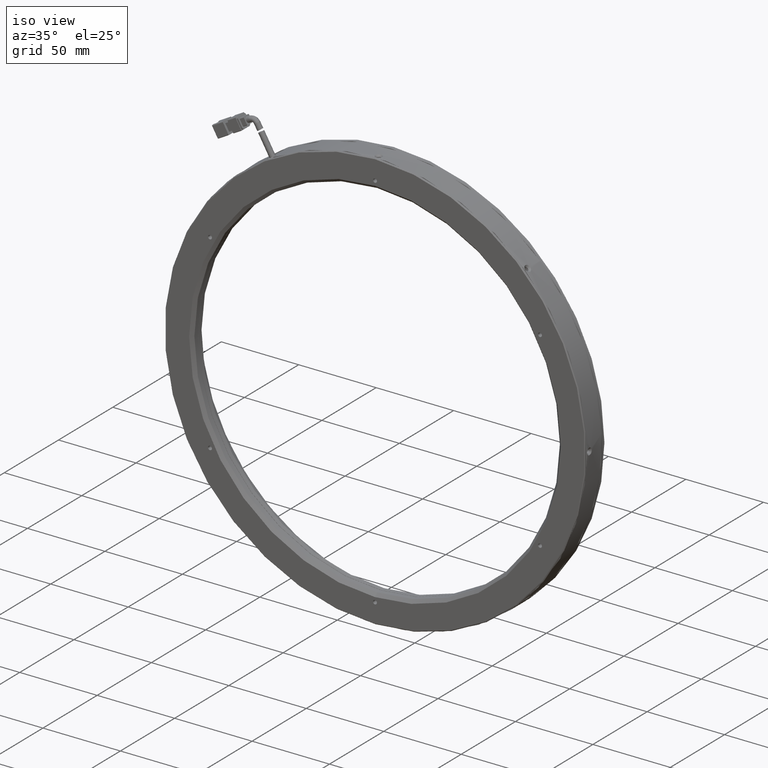
[diagram: clean part render]
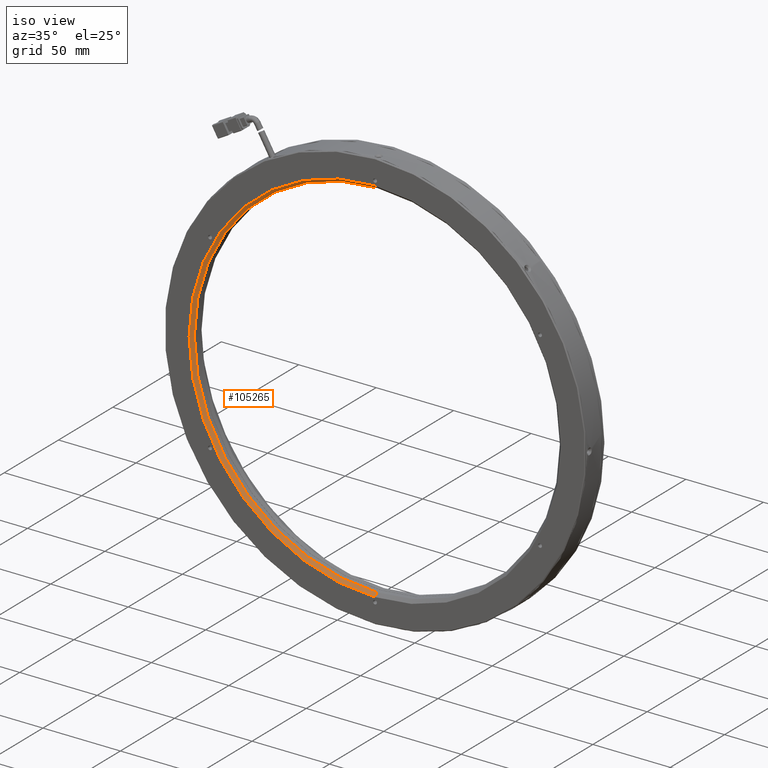
[diagram: same view with one face highlighted and labeled with its STEP entity id]
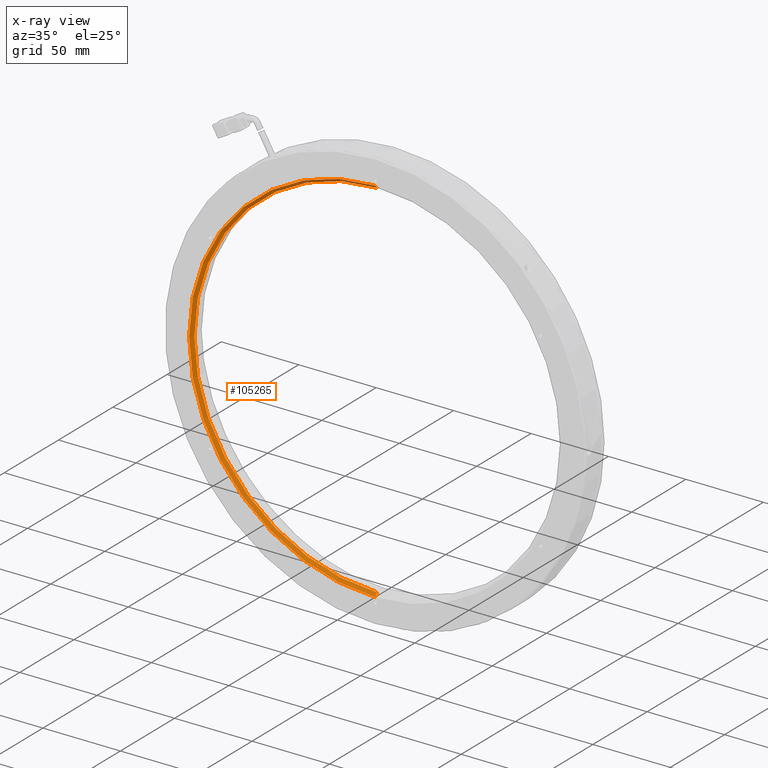
[diagram: x-ray of the same camera — body ghosted, the highlighted face saturated]
A machine part, iso view. The second image highlights one B-rep face of the part: STEP entity #105265.
The next image is the same camera in x-ray: the body ghosted, the highlighted face saturated — about 0% of this face is hidden behind the body in this view.
In plain terms, the highlighted conical surface has half-angle 45 deg.
Its self-contained STEP definition (entity closure, byte-faithful):
#1952 = DIRECTION ( 'NONE',  ( 0.0000000000000000000, 0.0000000000000000000, -1.000000000000000000 ) ) ;
#3303 = ORIENTED_EDGE ( 'NONE', *, *, #23125, .T. ) ;
#6474 = DIRECTION ( 'NONE',  ( 0.0000000000000000000, -1.000000000000000000, 0.0000000000000000000 ) ) ;
#12783 = DIRECTION ( 'NONE',  ( 0.0000000000000000000, 0.0000000000000000000, -1.000000000000000000 ) ) ;
#13100 = CIRCLE ( 'NONE', #23031, 118.0000000000000000 ) ;
#14037 = CARTESIAN_POINT ( 'NONE',  ( -23.30300868215379100, -3.366976514679598200, -120.0000000000000100 ) ) ;
#14478 = DIRECTION ( 'NONE',  ( 0.0000000000000000000, -0.7071067811865531200, -0.7071067811865420200 ) ) ;
#14698 = CARTESIAN_POINT ( 'NONE',  ( -23.30300868215379100, -3.366976514679588000, -120.0000000000000000 ) ) ;
#14939 = FACE_OUTER_BOUND ( 'NONE', #103302, .T. ) ;
#20045 = VERTEX_POINT ( 'NONE', #14698 ) ;
#23031 = AXIS2_PLACEMENT_3D ( 'NONE', #68829, #6474, #79284 ) ;
#23125 = EDGE_CURVE ( 'NONE', #119406, #24056, #113927, .T. ) ;
#24056 = VERTEX_POINT ( 'NONE', #70515 ) ;
#25539 = LINE ( 'NONE', #14037, #102097 ) ;
#29541 = CONICAL_SURFACE ( 'NONE', #70641, 120.0000000000000100, 0.7853981633974405100 ) ;
#51205 = DIRECTION ( 'NONE',  ( 8.659560562354866300E-017, -0.7071067811865531200, 0.7071067811865420200 ) ) ;
#52250 = EDGE_CURVE ( 'NONE', #24056, #20045, #89596, .T. ) ;
#58576 = VECTOR ( 'NONE', #51205, 999.9999999999998900 ) ;
#60996 = EDGE_CURVE ( 'NONE', #134481, #20045, #25539, .T. ) ;
#64343 = DIRECTION ( 'NONE',  ( 0.0000000000000000000, -1.000000000000000000, 0.0000000000000000000 ) ) ;
#68829 = CARTESIAN_POINT ( 'NONE',  ( -23.30300868215379100, -1.366976514679572300, 0.0000000000000000000 ) ) ;
#70515 = CARTESIAN_POINT ( 'NONE',  ( -23.30300868215377700, -3.366976514679588000, 120.0000000000000000 ) ) ;
#70641 = AXIS2_PLACEMENT_3D ( 'NONE', #106086, #95619, #12783 ) ;
#77595 = ORIENTED_EDGE ( 'NONE', *, *, #52250, .T. ) ;
#79284 = DIRECTION ( 'NONE',  ( 0.0000000000000000000, 2.940209281316622400E-017, -1.000000000000000000 ) ) ;
#79713 = ORIENTED_EDGE ( 'NONE', *, *, #60996, .F. ) ;
#79751 = CARTESIAN_POINT ( 'NONE',  ( -23.30300868215379100, -1.366976514679568700, -118.0000000000000000 ) ) ;
#84562 = EDGE_CURVE ( 'NONE', #119406, #134481, #13100, .T. ) ;
#87965 = ORIENTED_EDGE ( 'NONE', *, *, #84562, .F. ) ;
#89596 = CIRCLE ( 'NONE', #122164, 120.0000000000000000 ) ;
#95619 = DIRECTION ( 'NONE',  ( 0.0000000000000000000, -1.000000000000000000, 0.0000000000000000000 ) ) ;
#102097 = VECTOR ( 'NONE', #14478, 999.9999999999998900 ) ;
#103302 = EDGE_LOOP ( 'NONE', ( #87965, #3303, #77595, #79713 ) ) ;
#105265 = ADVANCED_FACE ( 'NONE', ( #14939 ), #29541, .F. ) ;
#106086 = CARTESIAN_POINT ( 'NONE',  ( -23.30300868215379100, -3.366976514679598200, 0.0000000000000000000 ) ) ;
#113557 = CARTESIAN_POINT ( 'NONE',  ( -23.30300868215377700, -3.366976514679598200, 120.0000000000000100 ) ) ;
#113927 = LINE ( 'NONE', #113557, #58576 ) ;
#119406 = VERTEX_POINT ( 'NONE', #125402 ) ;
#122164 = AXIS2_PLACEMENT_3D ( 'NONE', #126825, #64343, #1952 ) ;
#125402 = CARTESIAN_POINT ( 'NONE',  ( -23.30300868215377700, -1.366976514679572300, 118.0000000000000300 ) ) ;
#126825 = CARTESIAN_POINT ( 'NONE',  ( -23.30300868215379100, -3.366976514679588000, 0.0000000000000000000 ) ) ;
#134481 = VERTEX_POINT ( 'NONE', #79751 ) ;